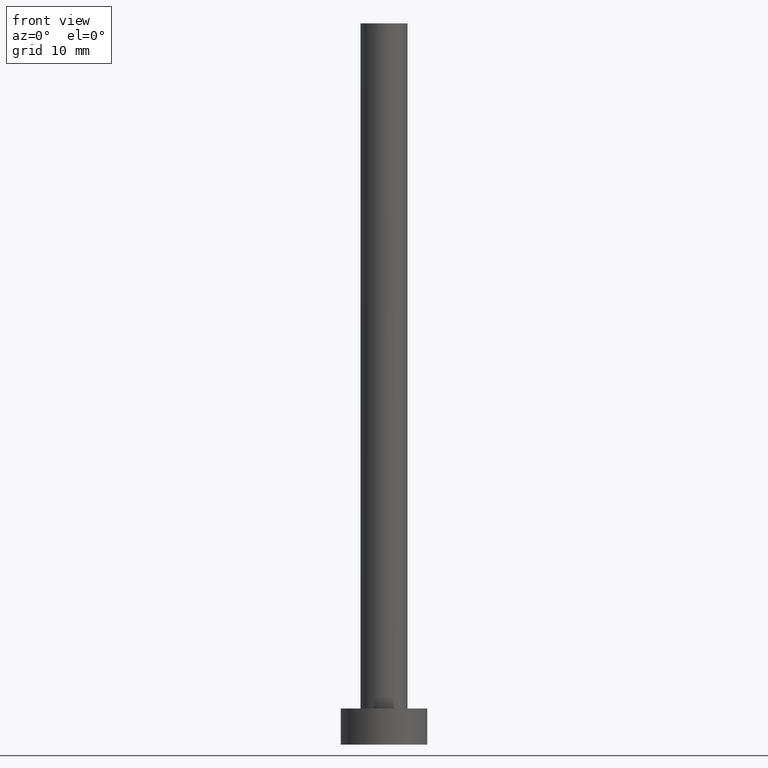
[diagram: clean part render]
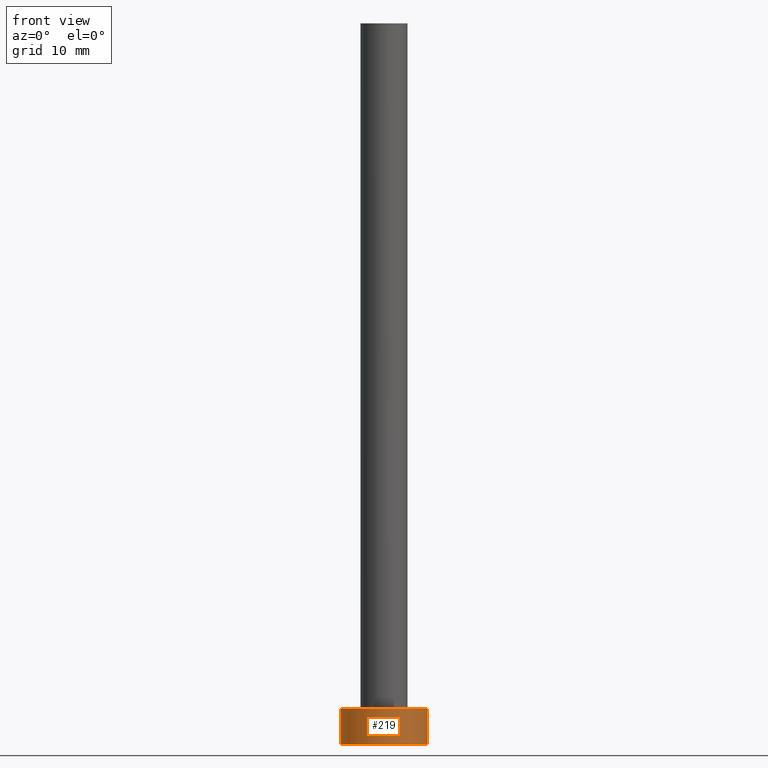
[diagram: same view with one face highlighted and labeled with its STEP entity id]
A machine part, front view. The second image highlights one B-rep face of the part: STEP entity #219.
In plain terms, the highlighted cylindrical surface (partial cylindrical patch) has radius 6 mm, axis along (-0, -0, -1).
Its self-contained STEP definition (entity closure, byte-faithful):
#9 = DIRECTION ( 'NONE',  ( 0.000000000000000000, 0.000000000000000000, 1.000000000000000000 ) ) ;
#12 = EDGE_CURVE ( 'NONE', #242, #146, #77, .T. ) ;
#13 = DIRECTION ( 'NONE',  ( -0.000000000000000000, -0.000000000000000000, -1.000000000000000000 ) ) ;
#14 = EDGE_CURVE ( 'NONE', #86, #200, #232, .T. ) ;
#23 = CARTESIAN_POINT ( 'NONE',  ( -6.000000000000000888, 0.000000000000000000, 5.000000000000000000 ) ) ;
#45 = AXIS2_PLACEMENT_3D ( 'NONE', #109, #207, #189 ) ;
#48 = CARTESIAN_POINT ( 'NONE',  ( 6.000000000000000888, 7.347880794884120722E-16, 0.000000000000000000 ) ) ;
#50 = LINE ( 'NONE', #190, #192 ) ;
#65 = ORIENTED_EDGE ( 'NONE', *, *, #12, .T. ) ;
#72 = AXIS2_PLACEMENT_3D ( 'NONE', #130, #9, #124 ) ;
#75 = CARTESIAN_POINT ( 'NONE',  ( 6.000000000000000888, 7.347880794884120722E-16, 5.000000000000000000 ) ) ;
#77 = CIRCLE ( 'NONE', #72, 6.000000000000000888 ) ;
#86 = VERTEX_POINT ( 'NONE', #23 ) ;
#100 = EDGE_LOOP ( 'NONE', ( #153, #102, #150, #65 ) ) ;
#102 = ORIENTED_EDGE ( 'NONE', *, *, #14, .F. ) ;
#107 = CYLINDRICAL_SURFACE ( 'NONE', #45, 6.000000000000000888 ) ;
#109 = CARTESIAN_POINT ( 'NONE',  ( 0.000000000000000000, 0.000000000000000000, 5.000000000000000000 ) ) ;
#124 = DIRECTION ( 'NONE',  ( 1.000000000000000000, 0.000000000000000000, 0.000000000000000000 ) ) ;
#130 = CARTESIAN_POINT ( 'NONE',  ( 0.000000000000000000, 0.000000000000000000, 0.000000000000000000 ) ) ;
#132 = VECTOR ( 'NONE', #225, 1000.000000000000000 ) ;
#146 = VERTEX_POINT ( 'NONE', #48 ) ;
#150 = ORIENTED_EDGE ( 'NONE', *, *, #246, .T. ) ;
#153 = ORIENTED_EDGE ( 'NONE', *, *, #171, .F. ) ;
#156 = CARTESIAN_POINT ( 'NONE',  ( 6.000000000000000888, 7.347880794884120722E-16, 5.000000000000000000 ) ) ;
#165 = DIRECTION ( 'NONE',  ( 0.000000000000000000, 0.000000000000000000, 1.000000000000000000 ) ) ;
#171 = EDGE_CURVE ( 'NONE', #200, #146, #172, .T. ) ;
#172 = LINE ( 'NONE', #75, #132 ) ;
#174 = FACE_OUTER_BOUND ( 'NONE', #100, .T. ) ;
#181 = CARTESIAN_POINT ( 'NONE',  ( 0.000000000000000000, 0.000000000000000000, 5.000000000000000000 ) ) ;
#188 = CARTESIAN_POINT ( 'NONE',  ( -6.000000000000000888, 0.000000000000000000, 0.000000000000000000 ) ) ;
#189 = DIRECTION ( 'NONE',  ( -1.000000000000000000, 0.000000000000000000, 0.000000000000000000 ) ) ;
#190 = CARTESIAN_POINT ( 'NONE',  ( -6.000000000000000888, 0.000000000000000000, 5.000000000000000000 ) ) ;
#192 = VECTOR ( 'NONE', #13, 1000.000000000000000 ) ;
#200 = VERTEX_POINT ( 'NONE', #156 ) ;
#205 = DIRECTION ( 'NONE',  ( 1.000000000000000000, 0.000000000000000000, 0.000000000000000000 ) ) ;
#207 = DIRECTION ( 'NONE',  ( -0.000000000000000000, -0.000000000000000000, -1.000000000000000000 ) ) ;
#219 = ADVANCED_FACE ( 'NONE', ( #174 ), #107, .T. ) ;
#221 = AXIS2_PLACEMENT_3D ( 'NONE', #181, #165, #205 ) ;
#225 = DIRECTION ( 'NONE',  ( -0.000000000000000000, -0.000000000000000000, -1.000000000000000000 ) ) ;
#232 = CIRCLE ( 'NONE', #221, 6.000000000000000888 ) ;
#242 = VERTEX_POINT ( 'NONE', #188 ) ;
#246 = EDGE_CURVE ( 'NONE', #86, #242, #50, .T. ) ;